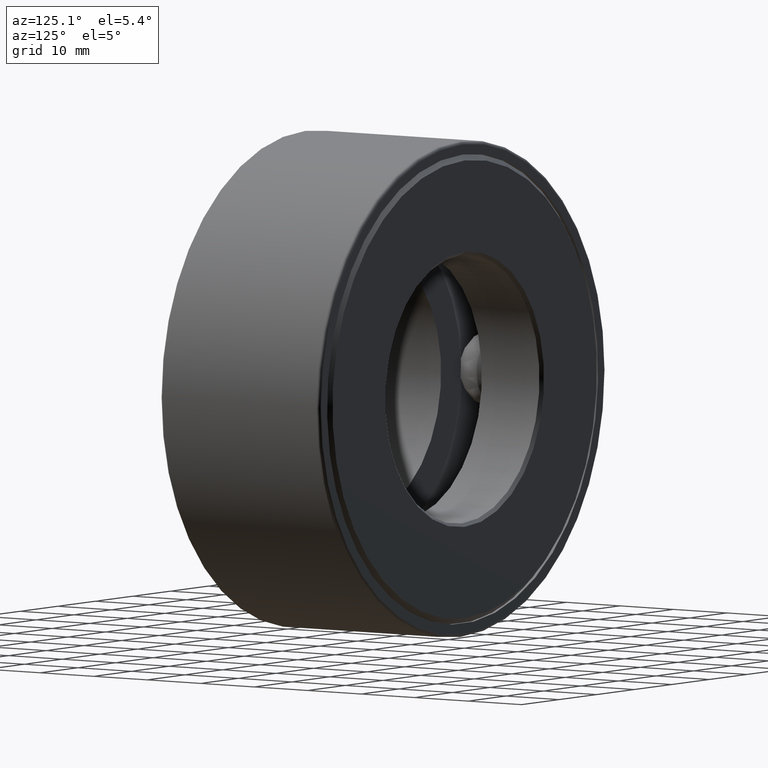
[diagram: clean part render]
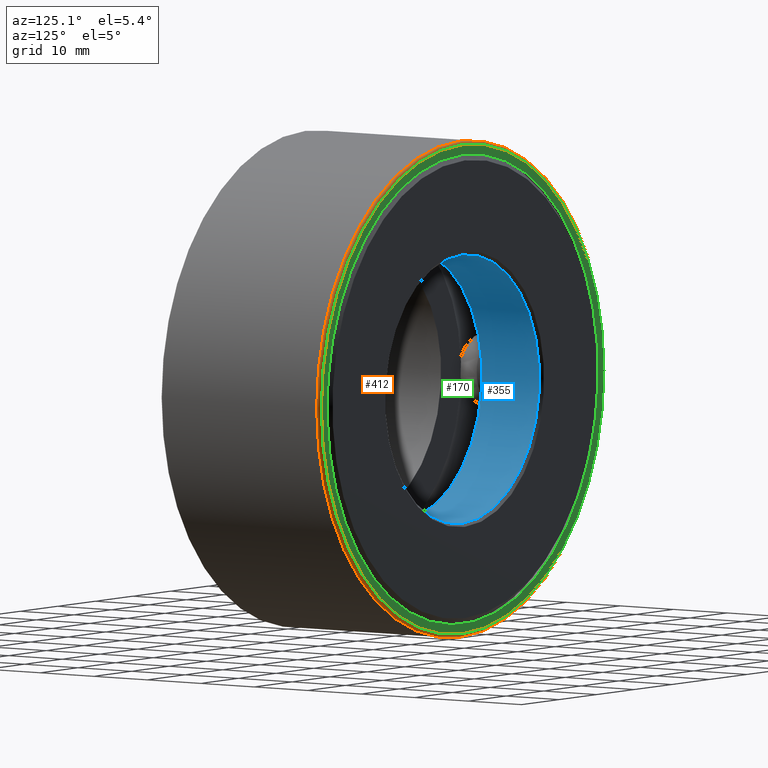
[diagram: same view with three faces highlighted in distinct colors, each labeled with its STEP entity id]
A machine part, auxiliary view with three faces highlighted in distinct colors.
Their STEP definitions:

[orange] entity #412 — the highlighted toroidal blend (fillet) surface has major radius 37.592 mm and minor (blend) radius 0.508 mm.
#33 = CARTESIAN_POINT ( 'NONE',  ( 0.0000000000000000000, 1.172499999999999900, 1.480000000000000000 ) ) ;
#38 = ORIENTED_EDGE ( 'NONE', *, *, #267, .F. ) ;
#51 = CARTESIAN_POINT ( 'NONE',  ( 0.0000000000000000000, 1.152499999999999900, 0.0000000000000000000 ) ) ;
#56 = VERTEX_POINT ( 'NONE', #225 ) ;
#62 = FACE_OUTER_BOUND ( 'NONE', #484, .T. ) ;
#121 = EDGE_LOOP ( 'NONE', ( #38 ) ) ;
#191 = AXIS2_PLACEMENT_3D ( 'NONE', #448, #259, #262 ) ;
#225 = CARTESIAN_POINT ( 'NONE',  ( 0.0000000000000000000, 1.152499999999999900, 1.500000000000000200 ) ) ;
#230 = DIRECTION ( 'NONE',  ( -0.0000000000000000000, 1.000000000000000000, -0.0000000000000000000 ) ) ;
#259 = DIRECTION ( 'NONE',  ( -0.0000000000000000000, 1.000000000000000000, -0.0000000000000000000 ) ) ;
#262 = DIRECTION ( 'NONE',  ( 0.0000000000000000000, 0.0000000000000000000, 1.000000000000000000 ) ) ;
#267 = EDGE_CURVE ( 'NONE', #542, #542, #447, .T. ) ;
#274 = AXIS2_PLACEMENT_3D ( 'NONE', #278, #601, #322 ) ;
#278 = CARTESIAN_POINT ( 'NONE',  ( 0.0000000000000000000, 1.172499999999999900, 0.0000000000000000000 ) ) ;
#304 = FACE_OUTER_BOUND ( 'NONE', #121, .T. ) ;
#317 = AXIS2_PLACEMENT_3D ( 'NONE', #51, #230, #324 ) ;
#322 = DIRECTION ( 'NONE',  ( 0.0000000000000000000, 0.0000000000000000000, 1.000000000000000000 ) ) ;
#324 = DIRECTION ( 'NONE',  ( 0.0000000000000000000, 0.0000000000000000000, 1.000000000000000000 ) ) ;
#404 = CIRCLE ( 'NONE', #191, 1.500000000000000200 ) ;
#412 = ADVANCED_FACE ( 'NONE', ( #304, #62 ), #577, .T. ) ;
#447 = CIRCLE ( 'NONE', #274, 1.480000000000000000 ) ;
#448 = CARTESIAN_POINT ( 'NONE',  ( 0.0000000000000000000, 1.152499999999999900, 0.0000000000000000000 ) ) ;
#484 = EDGE_LOOP ( 'NONE', ( #532 ) ) ;
#525 = EDGE_CURVE ( 'NONE', #56, #56, #404, .T. ) ;
#532 = ORIENTED_EDGE ( 'NONE', *, *, #525, .T. ) ;
#542 = VERTEX_POINT ( 'NONE', #33 ) ;
#577 = TOROIDAL_SURFACE ( 'NONE', #317, 1.480000000000000000, 0.02000000000000005900 ) ;
#601 = DIRECTION ( 'NONE',  ( -0.0000000000000000000, 1.000000000000000000, -0.0000000000000000000 ) ) ;

[blue] entity #355 — the highlighted cylindrical surface (bore or boss wall) has radius 20.6375 mm, axis along (-0, 1, -0).
#19 = CIRCLE ( 'NONE', #368, 0.8125000000000001100 ) ;
#98 = DIRECTION ( 'NONE',  ( -0.0000000000000000000, 1.000000000000000000, -0.0000000000000000000 ) ) ;
#122 = ORIENTED_EDGE ( 'NONE', *, *, #197, .T. ) ;
#139 = ORIENTED_EDGE ( 'NONE', *, *, #145, .F. ) ;
#145 = EDGE_CURVE ( 'NONE', #223, #223, #181, .T. ) ;
#173 = CARTESIAN_POINT ( 'NONE',  ( 0.0000000000000000000, 0.7437499999999998000, 0.8125000000000001100 ) ) ;
#180 = AXIS2_PLACEMENT_3D ( 'NONE', #419, #370, #461 ) ;
#181 = CIRCLE ( 'NONE', #180, 0.8125000000000001100 ) ;
#183 = DIRECTION ( 'NONE',  ( -0.0000000000000000000, 1.000000000000000000, -0.0000000000000000000 ) ) ;
#197 = EDGE_CURVE ( 'NONE', #482, #482, #19, .T. ) ;
#223 = VERTEX_POINT ( 'NONE', #173 ) ;
#355 = ADVANCED_FACE ( 'NONE', ( #423, #491 ), #485, .F. ) ;
#356 = EDGE_LOOP ( 'NONE', ( #122 ) ) ;
#368 = AXIS2_PLACEMENT_3D ( 'NONE', #466, #183, #591 ) ;
#370 = DIRECTION ( 'NONE',  ( -0.0000000000000000000, 1.000000000000000000, -0.0000000000000000000 ) ) ;
#419 = CARTESIAN_POINT ( 'NONE',  ( 0.0000000000000000000, 0.7437499999999998000, 0.0000000000000000000 ) ) ;
#423 = FACE_OUTER_BOUND ( 'NONE', #356, .T. ) ;
#427 = CARTESIAN_POINT ( 'NONE',  ( 0.0000000000000000000, 0.0000000000000000000, 0.0000000000000000000 ) ) ;
#441 = AXIS2_PLACEMENT_3D ( 'NONE', #427, #98, #475 ) ;
#461 = DIRECTION ( 'NONE',  ( 0.0000000000000000000, 0.0000000000000000000, 1.000000000000000000 ) ) ;
#466 = CARTESIAN_POINT ( 'NONE',  ( 0.0000000000000000000, 1.167499999999999500, 0.0000000000000000000 ) ) ;
#467 = EDGE_LOOP ( 'NONE', ( #139 ) ) ;
#475 = DIRECTION ( 'NONE',  ( 0.0000000000000000000, 0.0000000000000000000, 1.000000000000000000 ) ) ;
#482 = VERTEX_POINT ( 'NONE', #496 ) ;
#485 = CYLINDRICAL_SURFACE ( 'NONE', #441, 0.8125000000000001100 ) ;
#491 = FACE_OUTER_BOUND ( 'NONE', #467, .T. ) ;
#496 = CARTESIAN_POINT ( 'NONE',  ( 0.0000000000000000000, 1.167499999999999500, 0.8125000000000001100 ) ) ;
#591 = DIRECTION ( 'NONE',  ( 0.0000000000000000000, 0.0000000000000000000, 1.000000000000000000 ) ) ;

[green] entity #170 — the highlighted planar face has unit normal (0, -1, 0).
#11 = ORIENTED_EDGE ( 'NONE', *, *, #267, .T. ) ;
#23 = CARTESIAN_POINT ( 'NONE',  ( 0.0000000000000000000, 1.172499999999999900, 0.0000000000000000000 ) ) ;
#33 = CARTESIAN_POINT ( 'NONE',  ( 0.0000000000000000000, 1.172499999999999900, 1.480000000000000000 ) ) ;
#46 = EDGE_CURVE ( 'NONE', #350, #350, #564, .T. ) ;
#69 = AXIS2_PLACEMENT_3D ( 'NONE', #23, #579, #587 ) ;
#91 = EDGE_LOOP ( 'NONE', ( #11 ) ) ;
#111 = ORIENTED_EDGE ( 'NONE', *, *, #46, .F. ) ;
#130 = DIRECTION ( 'NONE',  ( 0.0000000000000000000, -1.000000000000000000, 0.0000000000000000000 ) ) ;
#170 = ADVANCED_FACE ( 'NONE', ( #246, #276 ), #184, .F. ) ;
#184 = PLANE ( 'NONE',  #294 ) ;
#246 = FACE_BOUND ( 'NONE', #595, .T. ) ;
#267 = EDGE_CURVE ( 'NONE', #542, #542, #447, .T. ) ;
#274 = AXIS2_PLACEMENT_3D ( 'NONE', #278, #601, #322 ) ;
#276 = FACE_OUTER_BOUND ( 'NONE', #91, .T. ) ;
#278 = CARTESIAN_POINT ( 'NONE',  ( 0.0000000000000000000, 1.172499999999999900, 0.0000000000000000000 ) ) ;
#294 = AXIS2_PLACEMENT_3D ( 'NONE', #547, #130, #456 ) ;
#322 = DIRECTION ( 'NONE',  ( 0.0000000000000000000, 0.0000000000000000000, 1.000000000000000000 ) ) ;
#350 = VERTEX_POINT ( 'NONE', #408 ) ;
#408 = CARTESIAN_POINT ( 'NONE',  ( 0.0000000000000000000, 1.172499999999999900, 1.420000000000000200 ) ) ;
#447 = CIRCLE ( 'NONE', #274, 1.480000000000000000 ) ;
#456 = DIRECTION ( 'NONE',  ( 0.0000000000000000000, -0.0000000000000000000, -1.000000000000000000 ) ) ;
#542 = VERTEX_POINT ( 'NONE', #33 ) ;
#547 = CARTESIAN_POINT ( 'NONE',  ( 0.0000000000000000000, 1.172499999999999900, 0.0000000000000000000 ) ) ;
#564 = CIRCLE ( 'NONE', #69, 1.420000000000000200 ) ;
#579 = DIRECTION ( 'NONE',  ( -0.0000000000000000000, 1.000000000000000000, -0.0000000000000000000 ) ) ;
#587 = DIRECTION ( 'NONE',  ( 0.0000000000000000000, 0.0000000000000000000, 1.000000000000000000 ) ) ;
#595 = EDGE_LOOP ( 'NONE', ( #111 ) ) ;
#601 = DIRECTION ( 'NONE',  ( -0.0000000000000000000, 1.000000000000000000, -0.0000000000000000000 ) ) ;